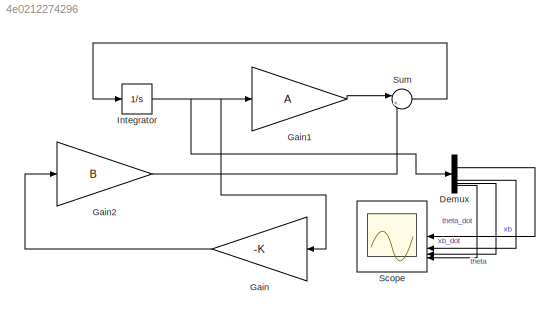
MODEL slx_4e0212274296
KIND model
CONFIG AbsTol = auto
CONFIG EnableMultiTasking = off
CONFIG FixedStep = auto
CONFIG MaxStep = auto
CONFIG MinStep = auto
CONFIG RelTol = 1e-3
CONFIG SampleTimeConstraint = Unconstrained
CONFIG SolverName = VariableStepAuto
CONFIG StartTime = 0.0
CONFIG StopTime = 20
BLOCK [Demux] Demux
BLOCK [Gain] Gain
  Gain = -K
  Multiplication = Matrix(K*u)
BLOCK [Gain] Gain1
  Gain = A
  Multiplication = Matrix(K*u)
BLOCK [Gain] Gain2
  Gain = B
  Multiplication = Matrix(K*u)
BLOCK [Integrator] Integrator
  InitialCondition = x0
BLOCK [Scope] Scope
  ActiveDisplayYMaximum = 0.01196248105727908
  ActiveDisplayYMinimum = -0.0076623295155117139
  Floating = off
  GraphicalSettings = {"Style":{"BackgroundColor":[0.12941176470588237,0.12941176470588237,0.12941176470588237],"AxesColor":[0.07058823529411765,0.07058823529411765,0.07058823529411765],"LabelsColor":[0.8509803921568627,0.8509803921568627,0.8509803921568627],"PreserveColors":false,"Visible":[true,true,true,true],"LineStyle":["-","-","-","-"],"LineWidth":[1.5,1.5,1.5,1.5],"BarWidth":[0.9,0.9,0.9,0.9],"LineColor":["auto"...<+3280ch>
  LayoutDimensionsString = [2, 2]
  MultipleDisplayCache = [{"MaxYLimMag":0.01196248105727908,"MaxYLimReal":0.01196248105727908,"MinYLimMag":0,"MinYLimReal":-0.0076623295155117139,"PlotAsMagnitudePhase":false,"ShowGrid":true,"ShowLegend":false,"Title":"%<SignalLabel>","YLabel":""},{"MaxYLimMag":0.042600945422758,"MaxYLimReal":0.015721660431459387,"MinYLimMag":0,"MinYLimReal":-0.042600945422758,"PlotAsMagnitudePhase":false,"ShowGrid":true,"ShowLegend":fals...<+481ch>
  NumInputPorts = 4
  SampleTime = 1e-4
  ScopeFrameLocation = window
  WasSavedAsWebScope = on
  WindowPosition = [384.000000,35.000000,878.000000,543.000000,]
BLOCK [Sum] Sum
  Inputs = |++
LINE Demux:1 -> Scope:1
LINE Demux:2 -> Scope:2
LINE Demux:3 -> Scope:3
LINE Demux:4 -> Scope:4
LINE Gain1:1 -> Sum:1
LINE Gain2:1 -> Sum:2
LINE Gain:1 -> Gain2:1
NET Integrator:1 -> Demux:1, Gain1:1, Gain:1
LINE Sum:1 -> Integrator:1
note: NET lines group one-source signal fan-out (src -> all destinations, sorted); 1:1 wires keep LINE
